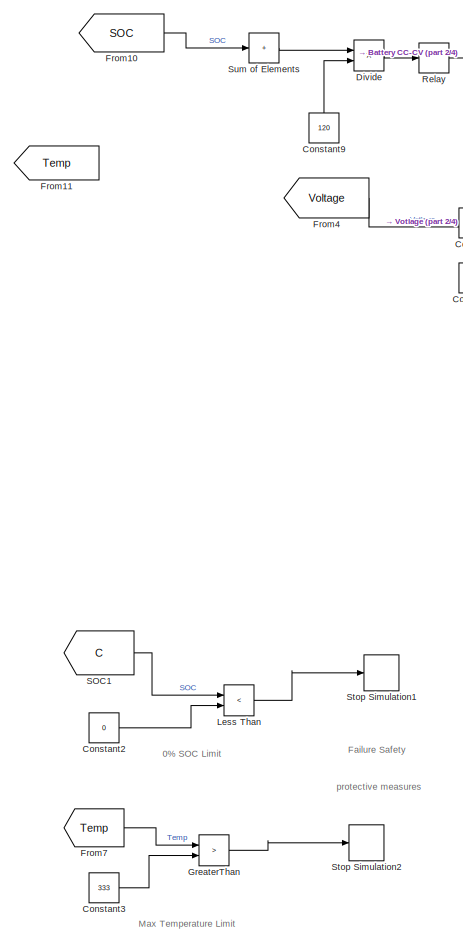
[diagram: root canvas - part 1/4, left side, full height]
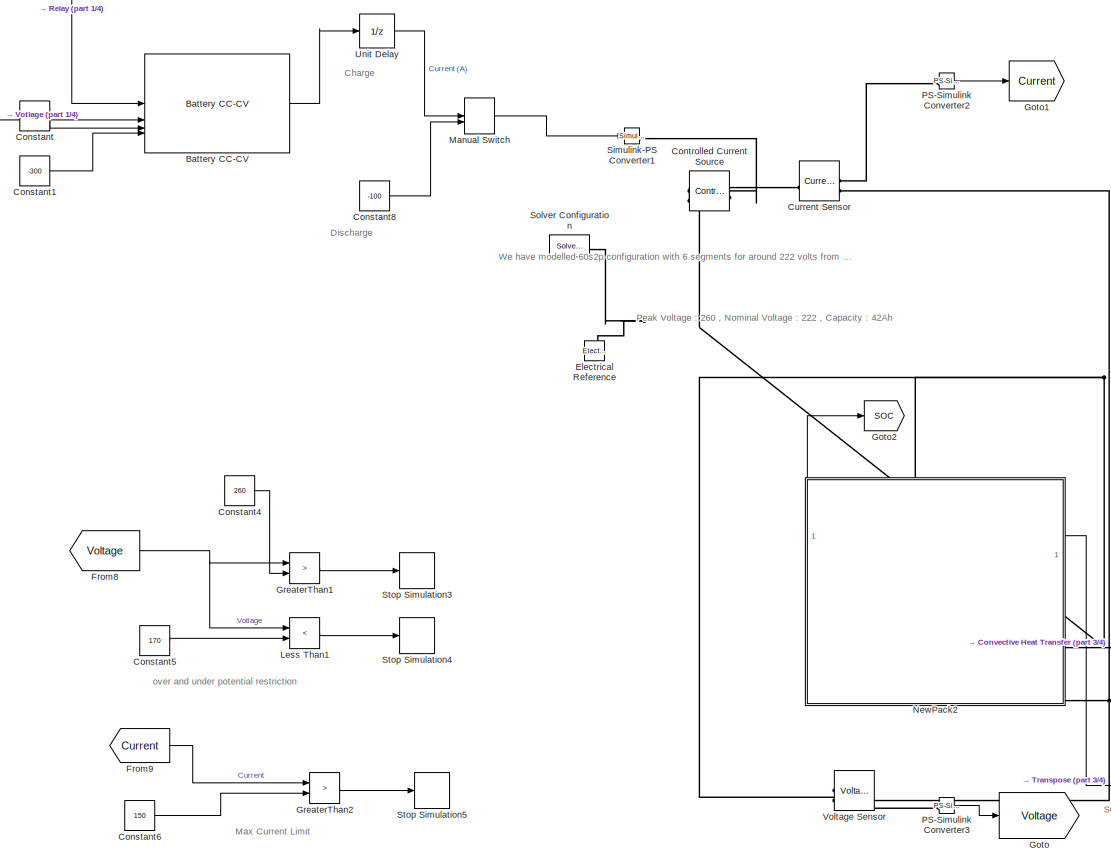
[diagram: root canvas - part 2/4, center side, full height]
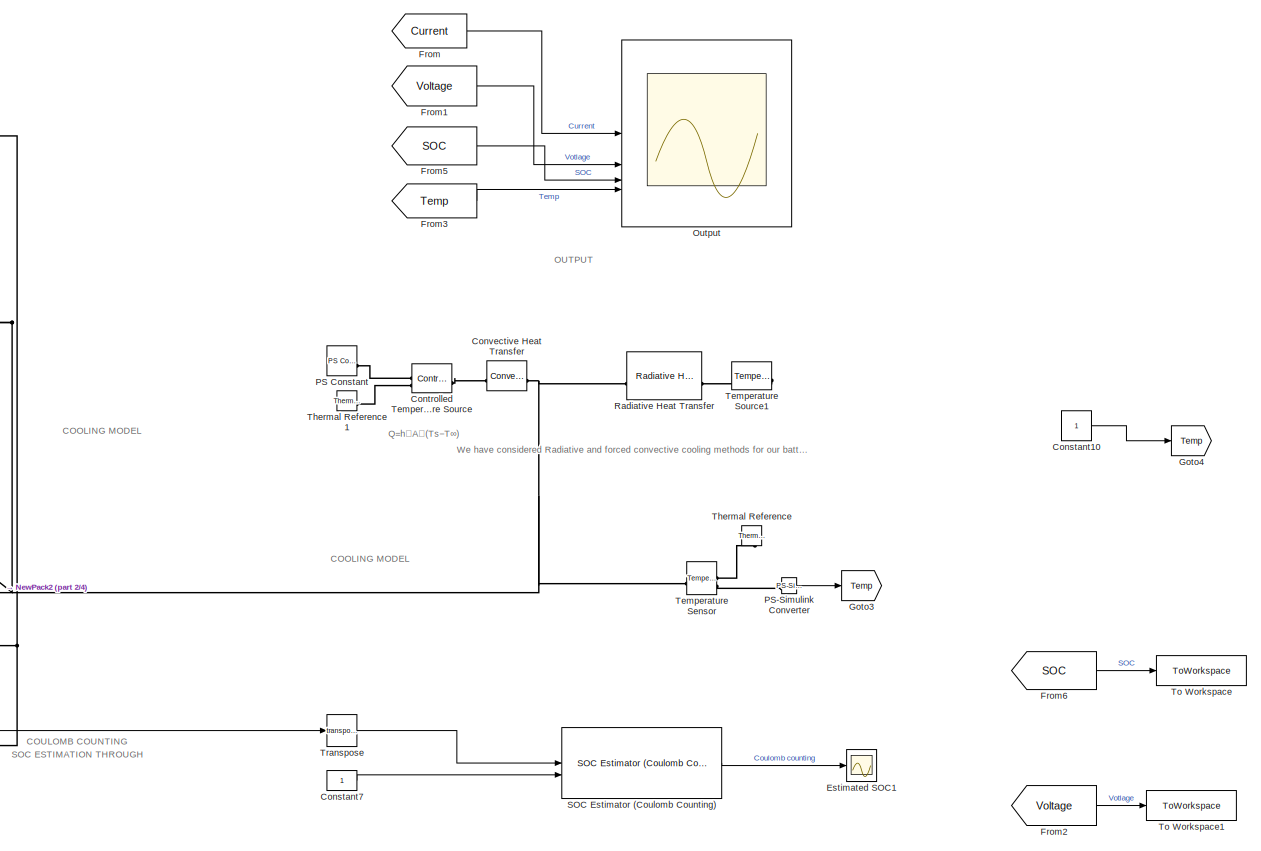
[diagram: root canvas - part 3/4, right side, full height]
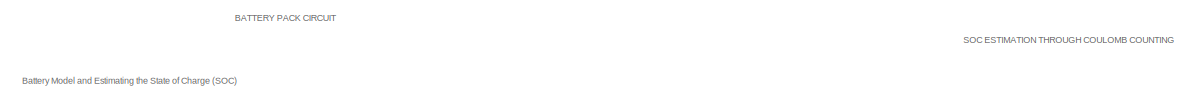
[diagram: root canvas - part 4/4, bottom center region]
MODEL slx_f00c120e42dd
KIND model
CONFIG AbsTol = 1e-3
CONFIG EnableMultiTasking = off
CONFIG FixedStep = auto
CONFIG MaxStep = auto
CONFIG MinStep = auto
CONFIG RelTol = 1e-3
CONFIG SampleTimeConstraint = Unconstrained
CONFIG SolverName = VariableStepAuto
CONFIG StartTime = 0.0
CONFIG StopTime = 5
BLOCK [Reference] Battery CC-CV  REF=BatteryCurrentManagement/Battery CC-CV
  LibrarySourceBlock = batt_sl_lib/Current Management/Battery CC-CV
  SourceBlock = BatteryCurrentManagement/Battery CC-CV
  SourceType = Battery CC-CV
BLOCK [Constant] Constant
  Value = 21
BLOCK [Constant] Constant1
  Value = -300
BLOCK [Constant] Constant10
BLOCK [Constant] Constant2
  Value = 0
BLOCK [Constant] Constant3
  Value = 333
BLOCK [Constant] Constant4
  Value = 260
BLOCK [Constant] Constant5
  Value = 170
BLOCK [Constant] Constant6
  Value = 150
BLOCK [Constant] Constant7
BLOCK [Constant] Constant8
  Value = -100
BLOCK [Constant] Constant9
  NameLocation = right
  Value = 120
BLOCK [Reference] Controlled Current Source  REF=fl_lib/Electrical/Electrical Sources/Controlled Current
Source
  NameLocation = top
  SourceBlock = fl_lib/Electrical/Electrical Sources/Controlled Current\nSource
  SourceType = Controlled Current\nSource
BLOCK [Reference] Controlled Temperature Source  REF=fl_lib/Thermal/Thermal Sources/Controlled
Temperature Source
  NameLocation = top
  SourceBlock = fl_lib/Thermal/Thermal Sources/Controlled\nTemperature Source
  SourceType = Controlled\nTemperature Source
BLOCK [Reference] Convective Heat Transfer  REF=fl_lib/Thermal/Thermal Elements/Convective Heat
Transfer
  SourceBlock = fl_lib/Thermal/Thermal Elements/Convective Heat\nTransfer
  SourceType = Convective Heat\nTransfer
BLOCK [Reference] Current Sensor  REF=fl_lib/Electrical/Electrical Sensors/Current Sensor
  SourceBlock = fl_lib/Electrical/Electrical Sensors/Current Sensor
  SourceType = Current Sensor
BLOCK [Product] Divide
  Inputs = */
BLOCK [Reference] Electrical Reference  REF=fl_lib/Electrical/Electrical Elements/Electrical Reference
  SourceBlock = fl_lib/Electrical/Electrical Elements/Electrical Reference
  SourceType = Electrical Reference
BLOCK [Scope] Estimated SOC1
  Floating = off
  NumInputPorts = 1
  ScopeSpecificationString = Simulink.scopes.TimeScopeBlockCfg('CurrentConfiguration', extmgr.ConfigurationSet(extmgr.Configuration('Core','General UI',true),extmgr.Configuration('Core','Source UI',true),extmgr.Configuration('Sources','WiredSimulink',true,'DataLoggingVariableName','ScopeData1'),extmgr.Configuration('Visuals','Time Domain',true,'SerializedDisplays',{struct('MinYLimReal','-0.11458','MaxYLimReal','1.12384','YLab...<+4203ch>
BLOCK [From] From
  GotoTag = Current
BLOCK [From] From1
  GotoTag = Voltage
BLOCK [From] From10
  GotoTag = SOC
BLOCK [From] From11
  GotoTag = Temp
BLOCK [From] From2
  GotoTag = Voltage
BLOCK [From] From3
  GotoTag = Temp
BLOCK [From] From4
  GotoTag = Voltage
BLOCK [From] From5
  GotoTag = SOC
BLOCK [From] From6
  GotoTag = SOC
BLOCK [From] From7
  GotoTag = Temp
BLOCK [From] From8
  GotoTag = Voltage
BLOCK [From] From9
  GotoTag = Current
BLOCK [Goto] Goto
  GotoTag = Voltage
  IconDisplay = Tag and signal name
BLOCK [Goto] Goto1
  GotoTag = Current
  IconDisplay = Tag and signal name
BLOCK [Goto] Goto2
  GotoTag = SOC
BLOCK [Goto] Goto3
  GotoTag = Temp
BLOCK [Goto] Goto4
  GotoTag = Temp
BLOCK [RelationalOperator] GreaterThan
  InputSameDT = off
  Operator = >
  OutDataTypeStr = boolean
  RndMeth = Simplest
BLOCK [RelationalOperator] GreaterThan1
  InputSameDT = off
  Operator = >
  OutDataTypeStr = boolean
  RndMeth = Simplest
BLOCK [RelationalOperator] GreaterThan2
  InputSameDT = off
  Operator = >
  OutDataTypeStr = boolean
  RndMeth = Simplest
BLOCK [RelationalOperator] Less Than
  InputSameDT = off
  Operator = <
  OutDataTypeStr = boolean
  RndMeth = Simplest
BLOCK [RelationalOperator] Less Than1
  InputSameDT = off
  Operator = <
  OutDataTypeStr = boolean
  RndMeth = Simplest
BLOCK [ManualSwitch] Manual Switch
  CurrentSetting = 0
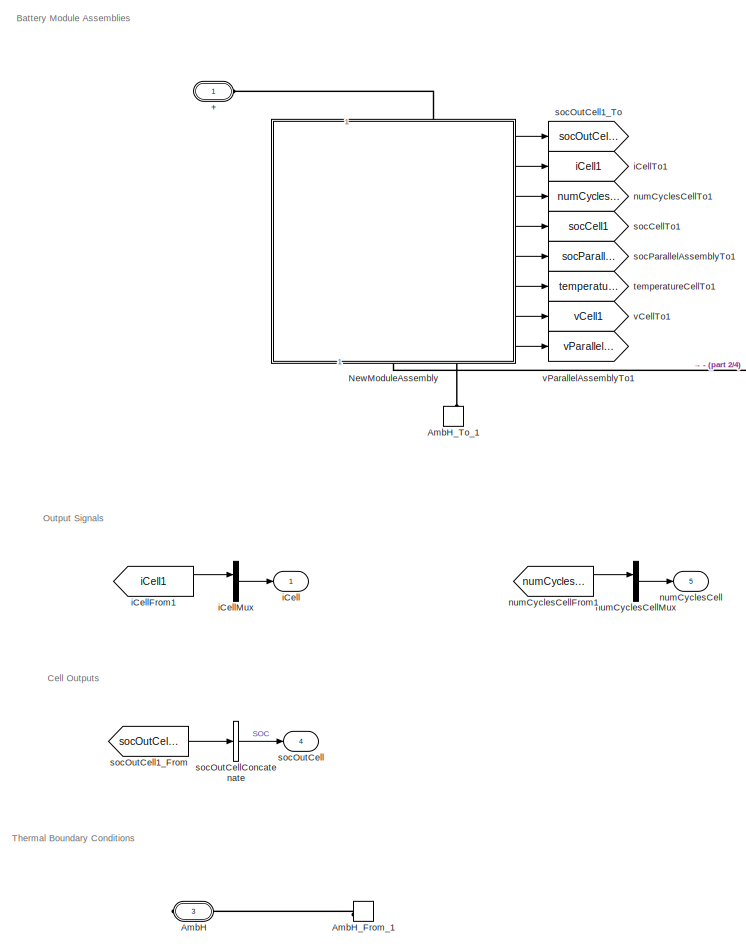
[diagram: NewPack2 - part 1/4, left side, full height]
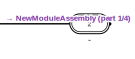
[diagram: NewPack2 - part 2/4, top right region]
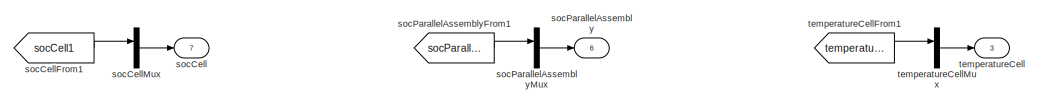
[diagram: NewPack2 - part 3/4, central region]
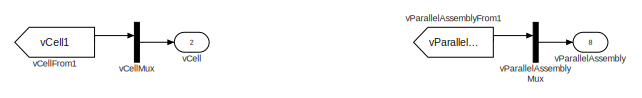
[diagram: NewPack2 - part 4/4, middle right region]
BLOCK [SubSystem] NewPack2
  CopyFcn = battery_builder_rtmsupport('copyfcn',gcbh);
  LoadFcn = battery_builder_rtmsupport('loadfcn',gcbh);
  NameLocation = right
  PortSchema = {"entries":[{"content":{"sides":[{"content":{"connectorIds":["LConn1"]},"type":"ConnectorPlacement.EquallySpacedRectSide","uuid":"dc7d36c4-4c89-4b98-861c-dbd258b1b0ba"},{"content":{"connectorIds":["RConn1","Out1","Out2","RConn2","Out3"],"side":"RIGHT"},"type":"ConnectorPlacement.EquallySpacedRectSide","uuid":"18c0289f-27a4-4c51-8919-c88b087c6b51"},{"content":{"side":"TOP"},"type":"ConnectorPlaceme...<+435ch>
  PreCopyFcn = battery_builder_rtmsupport('precopyfcn',gcbh);
  PreDeleteFcn = battery_builder_rtmsupport('predeletefcn',gcbh);
BLOCK [PMIOPort] NewPack2/+
  Side = Left
BLOCK [PMIOPort] NewPack2/-
  Port = 2
  Side = Right
BLOCK [PMIOPort] NewPack2/AmbH
  ConnectionType = Connection: foundation.thermal.thermal
  Port = 3
  Side = Right
BLOCK [ConnectionLabel] NewPack2/AmbH_From_1
  Label = ambH_1
BLOCK [ConnectionLabel] NewPack2/AmbH_To_1
  Label = ambH_1
  NameLocation = right
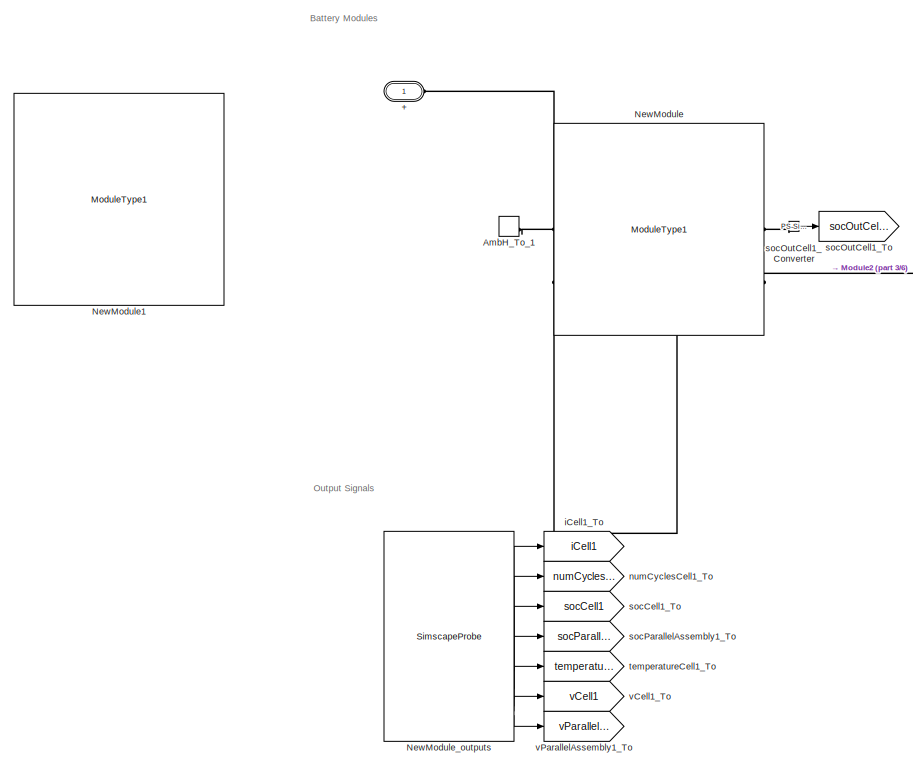
[diagram: NewPack2/NewModuleAssembly - part 1/6, top left region]
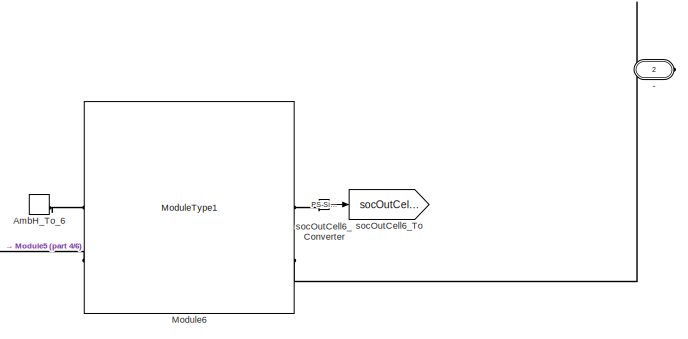
[diagram: NewPack2/NewModuleAssembly - part 2/6, top right region]
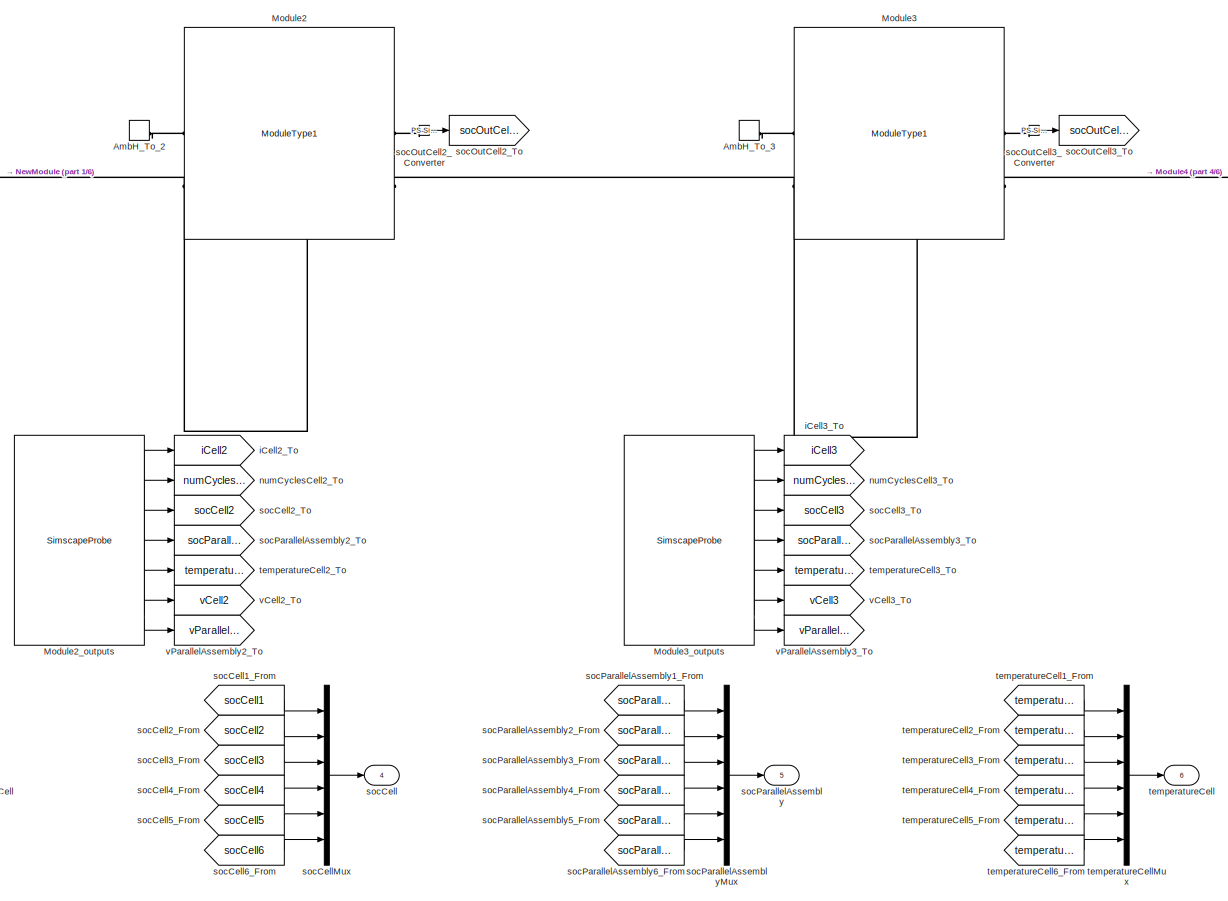
[diagram: NewPack2/NewModuleAssembly - part 3/6, central region]
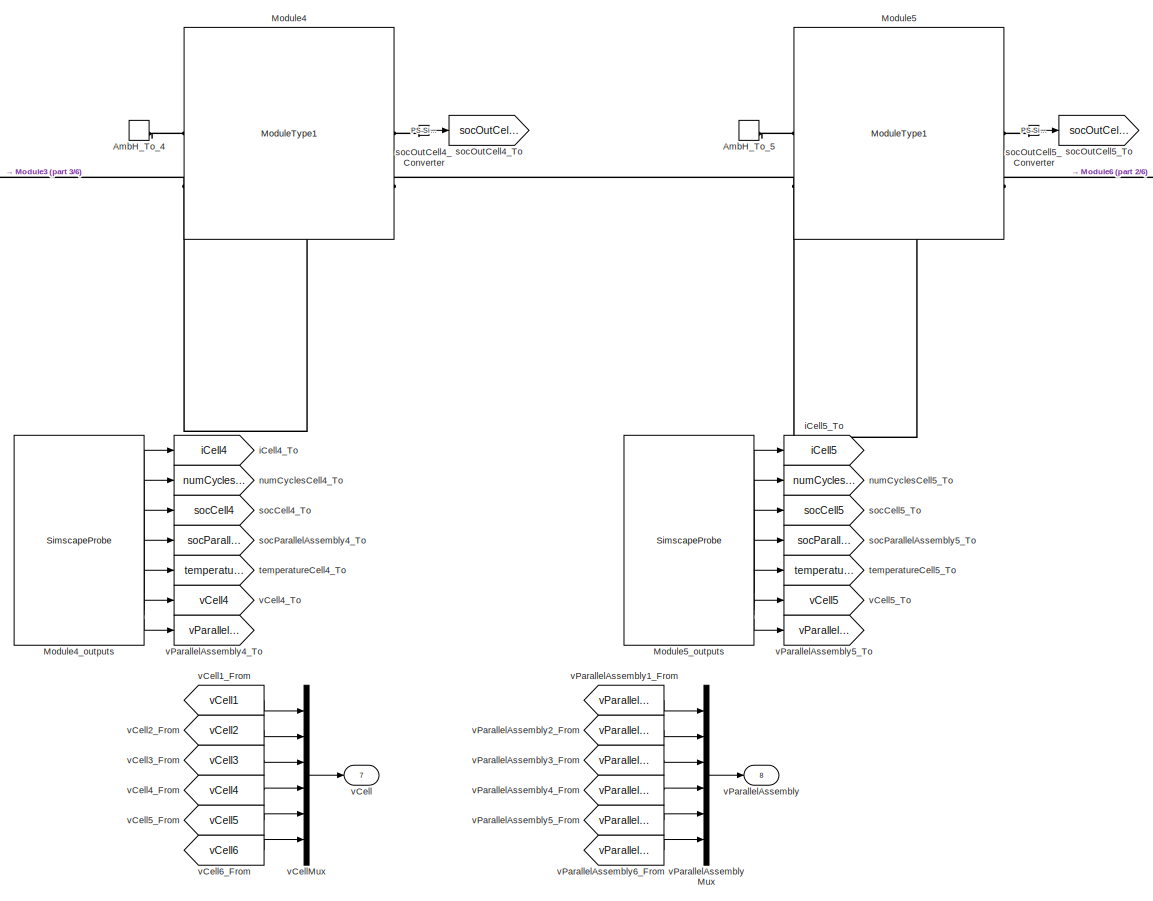
[diagram: NewPack2/NewModuleAssembly - part 4/6, central region]
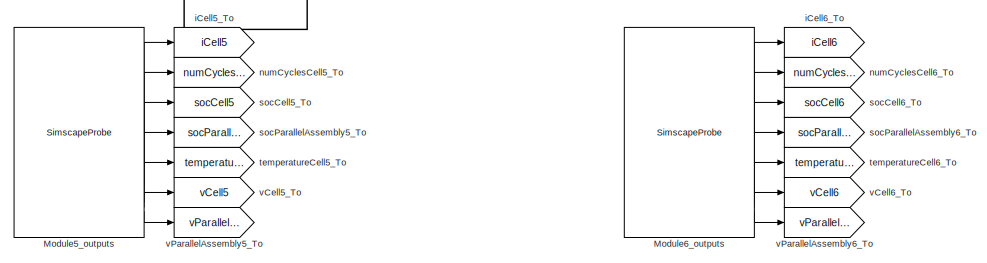
[diagram: NewPack2/NewModuleAssembly - part 5/6, middle right region]
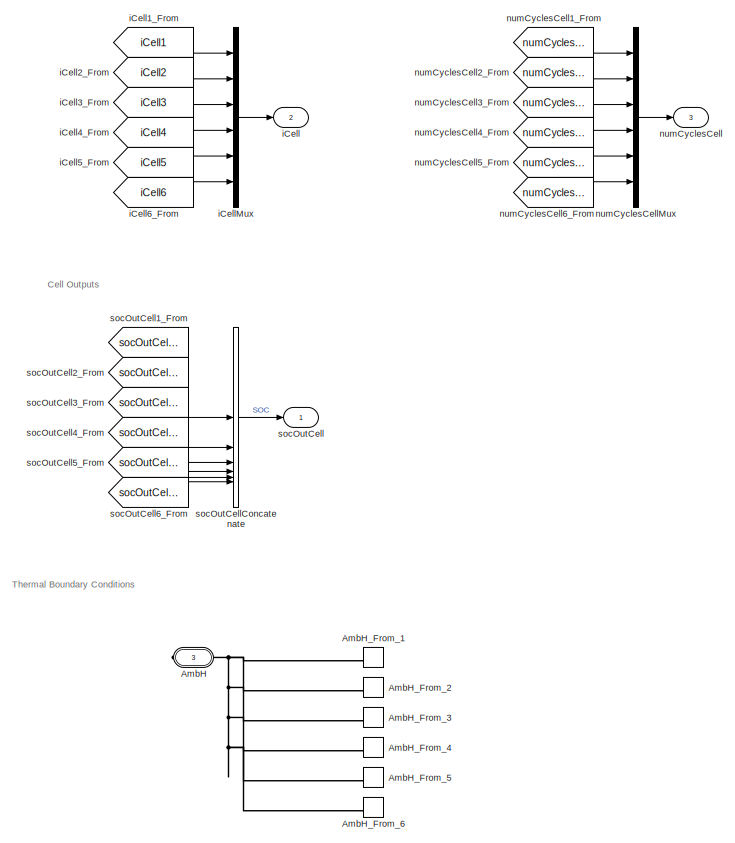
[diagram: NewPack2/NewModuleAssembly - part 6/6, bottom left region]
BLOCK [SubSystem] NewPack2/NewModuleAssembly
  CopyFcn = battery_builder_rtmsupport('copyfcn',gcbh);
  LoadFcn = battery_builder_rtmsupport('loadfcn',gcbh);
  PortSchema = {"entries":[{"content":{"sides":[{"content":{"connectorIds":["LConn1"]},"type":"ConnectorPlacement.EquallySpacedRectSide","uuid":"dc7d36c4-4c89-4b98-861c-dbd258b1b0ba"},{"content":{"connectorIds":["RConn1","RConn2"],"side":"RIGHT"},"type":"ConnectorPlacement.EquallySpacedRectSide","uuid":"18c0289f-27a4-4c51-8919-c88b087c6b51"},{"content":{"side":"TOP"},"type":"ConnectorPlacement.EquallySpacedRectS...<+435ch>
  PreCopyFcn = battery_builder_rtmsupport('precopyfcn',gcbh);
  PreDeleteFcn = battery_builder_rtmsupport('predeletefcn',gcbh);
BLOCK [PMIOPort] NewPack2/NewModuleAssembly/+
  Side = Left
BLOCK [PMIOPort] NewPack2/NewModuleAssembly/-
  Port = 2
  Side = Right
BLOCK [PMIOPort] NewPack2/NewModuleAssembly/AmbH
  ConnectionType = Connection: foundation.thermal.thermal
  Port = 3
  Side = Right
BLOCK [ConnectionLabel] NewPack2/NewModuleAssembly/AmbH_From_1
  Label = ambH_1
BLOCK [ConnectionLabel] NewPack2/NewModuleAssembly/AmbH_From_2
  Label = ambH_2
BLOCK [ConnectionLabel] NewPack2/NewModuleAssembly/AmbH_From_3
  Label = ambH_3
BLOCK [ConnectionLabel] NewPack2/NewModuleAssembly/AmbH_From_4
  Label = ambH_4
BLOCK [ConnectionLabel] NewPack2/NewModuleAssembly/AmbH_From_5
  Label = ambH_5
BLOCK [ConnectionLabel] NewPack2/NewModuleAssembly/AmbH_From_6
  Label = ambH_6
BLOCK [ConnectionLabel] NewPack2/NewModuleAssembly/AmbH_To_1
  Label = ambH_1
BLOCK [ConnectionLabel] NewPack2/NewModuleAssembly/AmbH_To_2
  Label = ambH_2
BLOCK [ConnectionLabel] NewPack2/NewModuleAssembly/AmbH_To_3
  Label = ambH_3
BLOCK [ConnectionLabel] NewPack2/NewModuleAssembly/AmbH_To_4
  Label = ambH_4
BLOCK [ConnectionLabel] NewPack2/NewModuleAssembly/AmbH_To_5
  Label = ambH_5
BLOCK [ConnectionLabel] NewPack2/NewModuleAssembly/AmbH_To_6
  Label = ambH_6
BLOCK [Reference] NewPack2/NewModuleAssembly/Module2  REF=Batteries_10s2p_lib/Modules/ModuleType1
  SourceBlock = Batteries_10s2p_lib/Modules/ModuleType1
  SourceType = ModuleType1
BLOCK [SimscapeProbe] NewPack2/NewModuleAssembly/Module2_outputs
  BoundBlock = 1419
  Variables = {"iCell":{"Unit":"A","PortLabel":"iCell","Probing":"ON"},"numCyclesCell":{"Unit":"1","PortLabel":"numCyclesCell","Probing":"ON"},"socCell":{"Unit":"1","PortLabel":"socCell","Probing":"ON"},"socParallelAssembly":{"Unit":"1","PortLabel":"socParallelAssembly","Probing":"ON"},"temperatureCell":{"Unit":"K","PortLabel":"temperatureCell","Probing":"ON"},"vCell":{"Unit":"V","PortLabel":"vCell","Probing":"...<+85ch>  <repeated x6 — deduplicated; at blocks: Module2_outputs, Module3_outputs, Module4_outputs, Module5_outputs, Module6_outputs, NewModule_outputs>
BLOCK [Reference] NewPack2/NewModuleAssembly/Module3  REF=Batteries_10s2p_lib/Modules/ModuleType1
  SourceBlock = Batteries_10s2p_lib/Modules/ModuleType1
  SourceType = ModuleType1
BLOCK [SimscapeProbe] NewPack2/NewModuleAssembly/Module3_outputs
  BoundBlock = 1421
BLOCK [Reference] NewPack2/NewModuleAssembly/Module4  REF=Batteries_10s2p_lib/Modules/ModuleType1
  SourceBlock = Batteries_10s2p_lib/Modules/ModuleType1
  SourceType = ModuleType1
BLOCK [SimscapeProbe] NewPack2/NewModuleAssembly/Module4_outputs
  BoundBlock = 1423
BLOCK [Reference] NewPack2/NewModuleAssembly/Module5  REF=Batteries_10s2p_lib/Modules/ModuleType1
  SourceBlock = Batteries_10s2p_lib/Modules/ModuleType1
  SourceType = ModuleType1
BLOCK [SimscapeProbe] NewPack2/NewModuleAssembly/Module5_outputs
  BoundBlock = 1425
BLOCK [Reference] NewPack2/NewModuleAssembly/Module6  REF=Batteries_10s2p_lib/Modules/ModuleType1
  SourceBlock = Batteries_10s2p_lib/Modules/ModuleType1
  SourceType = ModuleType1
BLOCK [SimscapeProbe] NewPack2/NewModuleAssembly/Module6_outputs
  BoundBlock = 1427
BLOCK [Reference] NewPack2/NewModuleAssembly/NewModule  REF=Batteries_10s2p_lib/Modules/ModuleType1
  SourceBlock = Batteries_10s2p_lib/Modules/ModuleType1
  SourceType = ModuleType1
BLOCK [Reference] NewPack2/NewModuleAssembly/NewModule1  REF=Batteries_10s2p_lib/Modules/ModuleType1
  Commented = on
  SourceBlock = Batteries_10s2p_lib/Modules/ModuleType1
  SourceType = ModuleType1
BLOCK [SimscapeProbe] NewPack2/NewModuleAssembly/NewModule_outputs
  BoundBlock = 1429
BLOCK [Outport] NewPack2/NewModuleAssembly/iCell
  Port = 2
BLOCK [From] NewPack2/NewModuleAssembly/iCell1_From
  GotoTag = iCell1
BLOCK [Goto] NewPack2/NewModuleAssembly/iCell1_To
  GotoTag = iCell1
BLOCK [From] NewPack2/NewModuleAssembly/iCell2_From
  GotoTag = iCell2
BLOCK [Goto] NewPack2/NewModuleAssembly/iCell2_To
  GotoTag = iCell2
BLOCK [From] NewPack2/NewModuleAssembly/iCell3_From
  GotoTag = iCell3
BLOCK [Goto] NewPack2/NewModuleAssembly/iCell3_To
  GotoTag = iCell3
BLOCK [From] NewPack2/NewModuleAssembly/iCell4_From
  GotoTag = iCell4
BLOCK [Goto] NewPack2/NewModuleAssembly/iCell4_To
  GotoTag = iCell4
BLOCK [From] NewPack2/NewModuleAssembly/iCell5_From
  GotoTag = iCell5
BLOCK [Goto] NewPack2/NewModuleAssembly/iCell5_To
  GotoTag = iCell5
BLOCK [From] NewPack2/NewModuleAssembly/iCell6_From
  GotoTag = iCell6
BLOCK [Goto] NewPack2/NewModuleAssembly/iCell6_To
  GotoTag = iCell6
BLOCK [Mux] NewPack2/NewModuleAssembly/iCellMux
  DisplayOption = bar
  Inputs = 6
BLOCK [Outport] NewPack2/NewModuleAssembly/numCyclesCell
  Port = 3
BLOCK [From] NewPack2/NewModuleAssembly/numCyclesCell1_From
  GotoTag = numCyclesCell1
BLOCK [Goto] NewPack2/NewModuleAssembly/numCyclesCell1_To
  GotoTag = numCyclesCell1
BLOCK [From] NewPack2/NewModuleAssembly/numCyclesCell2_From
  GotoTag = numCyclesCell2
BLOCK [Goto] NewPack2/NewModuleAssembly/numCyclesCell2_To
  GotoTag = numCyclesCell2
BLOCK [From] NewPack2/NewModuleAssembly/numCyclesCell3_From
  GotoTag = numCyclesCell3
BLOCK [Goto] NewPack2/NewModuleAssembly/numCyclesCell3_To
  GotoTag = numCyclesCell3
BLOCK [From] NewPack2/NewModuleAssembly/numCyclesCell4_From
  GotoTag = numCyclesCell4
BLOCK [Goto] NewPack2/NewModuleAssembly/numCyclesCell4_To
  GotoTag = numCyclesCell4
BLOCK [From] NewPack2/NewModuleAssembly/numCyclesCell5_From
  GotoTag = numCyclesCell5
BLOCK [Goto] NewPack2/NewModuleAssembly/numCyclesCell5_To
  GotoTag = numCyclesCell5
BLOCK [From] NewPack2/NewModuleAssembly/numCyclesCell6_From
  GotoTag = numCyclesCell6
BLOCK [Goto] NewPack2/NewModuleAssembly/numCyclesCell6_To
  GotoTag = numCyclesCell6
BLOCK [Mux] NewPack2/NewModuleAssembly/numCyclesCellMux
  DisplayOption = bar
  Inputs = 6
BLOCK [Outport] NewPack2/NewModuleAssembly/socCell
  Port = 4
BLOCK [From] NewPack2/NewModuleAssembly/socCell1_From
  GotoTag = socCell1
BLOCK [Goto] NewPack2/NewModuleAssembly/socCell1_To
  GotoTag = socCell1
BLOCK [From] NewPack2/NewModuleAssembly/socCell2_From
  GotoTag = socCell2
BLOCK [Goto] NewPack2/NewModuleAssembly/socCell2_To
  GotoTag = socCell2
BLOCK [From] NewPack2/NewModuleAssembly/socCell3_From
  GotoTag = socCell3
BLOCK [Goto] NewPack2/NewModuleAssembly/socCell3_To
  GotoTag = socCell3
BLOCK [From] NewPack2/NewModuleAssembly/socCell4_From
  GotoTag = socCell4
BLOCK [Goto] NewPack2/NewModuleAssembly/socCell4_To
  GotoTag = socCell4
BLOCK [From] NewPack2/NewModuleAssembly/socCell5_From
  GotoTag = socCell5
BLOCK [Goto] NewPack2/NewModuleAssembly/socCell5_To
  GotoTag = socCell5
BLOCK [From] NewPack2/NewModuleAssembly/socCell6_From
  GotoTag = socCell6
BLOCK [Goto] NewPack2/NewModuleAssembly/socCell6_To
  GotoTag = socCell6
BLOCK [Mux] NewPack2/NewModuleAssembly/socCellMux
  DisplayOption = bar
  Inputs = 6
BLOCK [Outport] NewPack2/NewModuleAssembly/socOutCell
  IconDisplay = Signal name
BLOCK [Reference] NewPack2/NewModuleAssembly/socOutCell1_Converter  REF=nesl_utility/PS-Simulink
Converter
  SourceBlock = nesl_utility/PS-Simulink\nConverter
  SourceType = PS-Simulink\nConverter
BLOCK [From] NewPack2/NewModuleAssembly/socOutCell1_From
  GotoTag = socOutCell1
BLOCK [Goto] NewPack2/NewModuleAssembly/socOutCell1_To
  GotoTag = socOutCell1
BLOCK [Reference] NewPack2/NewModuleAssembly/socOutCell2_Converter  REF=nesl_utility/PS-Simulink
Converter
  SourceBlock = nesl_utility/PS-Simulink\nConverter
  SourceType = PS-Simulink\nConverter
BLOCK [From] NewPack2/NewModuleAssembly/socOutCell2_From
  GotoTag = socOutCell2
BLOCK [Goto] NewPack2/NewModuleAssembly/socOutCell2_To
  GotoTag = socOutCell2
BLOCK [Reference] NewPack2/NewModuleAssembly/socOutCell3_Converter  REF=nesl_utility/PS-Simulink
Converter
  SourceBlock = nesl_utility/PS-Simulink\nConverter
  SourceType = PS-Simulink\nConverter
BLOCK [From] NewPack2/NewModuleAssembly/socOutCell3_From
  GotoTag = socOutCell3
BLOCK [Goto] NewPack2/NewModuleAssembly/socOutCell3_To
  GotoTag = socOutCell3
BLOCK [Reference] NewPack2/NewModuleAssembly/socOutCell4_Converter  REF=nesl_utility/PS-Simulink
Converter
  SourceBlock = nesl_utility/PS-Simulink\nConverter
  SourceType = PS-Simulink\nConverter
BLOCK [From] NewPack2/NewModuleAssembly/socOutCell4_From
  GotoTag = socOutCell4
BLOCK [Goto] NewPack2/NewModuleAssembly/socOutCell4_To
  GotoTag = socOutCell4
BLOCK [Reference] NewPack2/NewModuleAssembly/socOutCell5_Converter  REF=nesl_utility/PS-Simulink
Converter
  SourceBlock = nesl_utility/PS-Simulink\nConverter
  SourceType = PS-Simulink\nConverter
BLOCK [From] NewPack2/NewModuleAssembly/socOutCell5_From
  GotoTag = socOutCell5
BLOCK [Goto] NewPack2/NewModuleAssembly/socOutCell5_To
  GotoTag = socOutCell5
BLOCK [Reference] NewPack2/NewModuleAssembly/socOutCell6_Converter  REF=nesl_utility/PS-Simulink
Converter
  SourceBlock = nesl_utility/PS-Simulink\nConverter
  SourceType = PS-Simulink\nConverter
BLOCK [From] NewPack2/NewModuleAssembly/socOutCell6_From
  GotoTag = socOutCell6
BLOCK [Goto] NewPack2/NewModuleAssembly/socOutCell6_To
  GotoTag = socOutCell6
BLOCK [Concatenate] NewPack2/NewModuleAssembly/socOutCellConcatenate
  ConcatenateDimension = 2
  Mode = Multidimensional array
  NumInputs = 6
BLOCK [Outport] NewPack2/NewModuleAssembly/socParallelAssembly
  Port = 5
BLOCK [From] NewPack2/NewModuleAssembly/socParallelAssembly1_From
  GotoTag = socParallelAssembly1
BLOCK [Goto] NewPack2/NewModuleAssembly/socParallelAssembly1_To
  GotoTag = socParallelAssembly1
BLOCK [From] NewPack2/NewModuleAssembly/socParallelAssembly2_From
  GotoTag = socParallelAssembly2
BLOCK [Goto] NewPack2/NewModuleAssembly/socParallelAssembly2_To
  GotoTag = socParallelAssembly2
BLOCK [From] NewPack2/NewModuleAssembly/socParallelAssembly3_From
  GotoTag = socParallelAssembly3
BLOCK [Goto] NewPack2/NewModuleAssembly/socParallelAssembly3_To
  GotoTag = socParallelAssembly3
BLOCK [From] NewPack2/NewModuleAssembly/socParallelAssembly4_From
  GotoTag = socParallelAssembly4
BLOCK [Goto] NewPack2/NewModuleAssembly/socParallelAssembly4_To
  GotoTag = socParallelAssembly4
BLOCK [From] NewPack2/NewModuleAssembly/socParallelAssembly5_From
  GotoTag = socParallelAssembly5
BLOCK [Goto] NewPack2/NewModuleAssembly/socParallelAssembly5_To
  GotoTag = socParallelAssembly5
BLOCK [From] NewPack2/NewModuleAssembly/socParallelAssembly6_From
  GotoTag = socParallelAssembly6
BLOCK [Goto] NewPack2/NewModuleAssembly/socParallelAssembly6_To
  GotoTag = socParallelAssembly6
BLOCK [Mux] NewPack2/NewModuleAssembly/socParallelAssemblyMux
  DisplayOption = bar
  Inputs = 6
BLOCK [Outport] NewPack2/NewModuleAssembly/temperatureCell
  Port = 6
BLOCK [From] NewPack2/NewModuleAssembly/temperatureCell1_From
  GotoTag = temperatureCell1
BLOCK [Goto] NewPack2/NewModuleAssembly/temperatureCell1_To
  GotoTag = temperatureCell1
BLOCK [From] NewPack2/NewModuleAssembly/temperatureCell2_From
  GotoTag = temperatureCell2
BLOCK [Goto] NewPack2/NewModuleAssembly/temperatureCell2_To
  GotoTag = temperatureCell2
BLOCK [From] NewPack2/NewModuleAssembly/temperatureCell3_From
  GotoTag = temperatureCell3
BLOCK [Goto] NewPack2/NewModuleAssembly/temperatureCell3_To
  GotoTag = temperatureCell3
BLOCK [From] NewPack2/NewModuleAssembly/temperatureCell4_From
  GotoTag = temperatureCell4
BLOCK [Goto] NewPack2/NewModuleAssembly/temperatureCell4_To
  GotoTag = temperatureCell4
BLOCK [From] NewPack2/NewModuleAssembly/temperatureCell5_From
  GotoTag = temperatureCell5
BLOCK [Goto] NewPack2/NewModuleAssembly/temperatureCell5_To
  GotoTag = temperatureCell5
BLOCK [From] NewPack2/NewModuleAssembly/temperatureCell6_From
  GotoTag = temperatureCell6
BLOCK [Goto] NewPack2/NewModuleAssembly/temperatureCell6_To
  GotoTag = temperatureCell6
BLOCK [Mux] NewPack2/NewModuleAssembly/temperatureCellMux
  DisplayOption = bar
  Inputs = 6
BLOCK [Outport] NewPack2/NewModuleAssembly/vCell
  Port = 7
BLOCK [From] NewPack2/NewModuleAssembly/vCell1_From
  GotoTag = vCell1
BLOCK [Goto] NewPack2/NewModuleAssembly/vCell1_To
  GotoTag = vCell1
BLOCK [From] NewPack2/NewModuleAssembly/vCell2_From
  GotoTag = vCell2
BLOCK [Goto] NewPack2/NewModuleAssembly/vCell2_To
  GotoTag = vCell2
BLOCK [From] NewPack2/NewModuleAssembly/vCell3_From
  GotoTag = vCell3
BLOCK [Goto] NewPack2/NewModuleAssembly/vCell3_To
  GotoTag = vCell3
BLOCK [From] NewPack2/NewModuleAssembly/vCell4_From
  GotoTag = vCell4
BLOCK [Goto] NewPack2/NewModuleAssembly/vCell4_To
  GotoTag = vCell4
BLOCK [From] NewPack2/NewModuleAssembly/vCell5_From
  GotoTag = vCell5
BLOCK [Goto] NewPack2/NewModuleAssembly/vCell5_To
  GotoTag = vCell5
BLOCK [From] NewPack2/NewModuleAssembly/vCell6_From
  GotoTag = vCell6
BLOCK [Goto] NewPack2/NewModuleAssembly/vCell6_To
  GotoTag = vCell6
BLOCK [Mux] NewPack2/NewModuleAssembly/vCellMux
  DisplayOption = bar
  Inputs = 6
BLOCK [Outport] NewPack2/NewModuleAssembly/vParallelAssembly
  Port = 8
BLOCK [From] NewPack2/NewModuleAssembly/vParallelAssembly1_From
  GotoTag = vParallelAssembly1
BLOCK [Goto] NewPack2/NewModuleAssembly/vParallelAssembly1_To
  GotoTag = vParallelAssembly1
BLOCK [From] NewPack2/NewModuleAssembly/vParallelAssembly2_From
  GotoTag = vParallelAssembly2
BLOCK [Goto] NewPack2/NewModuleAssembly/vParallelAssembly2_To
  GotoTag = vParallelAssembly2
BLOCK [From] NewPack2/NewModuleAssembly/vParallelAssembly3_From
  GotoTag = vParallelAssembly3
BLOCK [Goto] NewPack2/NewModuleAssembly/vParallelAssembly3_To
  GotoTag = vParallelAssembly3
BLOCK [From] NewPack2/NewModuleAssembly/vParallelAssembly4_From
  GotoTag = vParallelAssembly4
BLOCK [Goto] NewPack2/NewModuleAssembly/vParallelAssembly4_To
  GotoTag = vParallelAssembly4
BLOCK [From] NewPack2/NewModuleAssembly/vParallelAssembly5_From
  GotoTag = vParallelAssembly5
BLOCK [Goto] NewPack2/NewModuleAssembly/vParallelAssembly5_To
  GotoTag = vParallelAssembly5
BLOCK [From] NewPack2/NewModuleAssembly/vParallelAssembly6_From
  GotoTag = vParallelAssembly6
BLOCK [Goto] NewPack2/NewModuleAssembly/vParallelAssembly6_To
  GotoTag = vParallelAssembly6
BLOCK [Mux] NewPack2/NewModuleAssembly/vParallelAssemblyMux
  DisplayOption = bar
  Inputs = 6
BLOCK [Outport] NewPack2/iCell
BLOCK [From] NewPack2/iCellFrom1
  GotoTag = iCell1
BLOCK [Mux] NewPack2/iCellMux
  DisplayOption = bar
  Inputs = 1
BLOCK [Goto] NewPack2/iCellTo1
  GotoTag = iCell1
BLOCK [Outport] NewPack2/numCyclesCell
  Port = 5
BLOCK [From] NewPack2/numCyclesCellFrom1
  GotoTag = numCyclesCell1
BLOCK [Mux] NewPack2/numCyclesCellMux
  DisplayOption = bar
  Inputs = 1
BLOCK [Goto] NewPack2/numCyclesCellTo1
  GotoTag = numCyclesCell1
BLOCK [Outport] NewPack2/socCell
  Port = 7
BLOCK [From] NewPack2/socCellFrom1
  GotoTag = socCell1
BLOCK [Mux] NewPack2/socCellMux
  DisplayOption = bar
  Inputs = 1
BLOCK [Goto] NewPack2/socCellTo1
  GotoTag = socCell1
BLOCK [Outport] NewPack2/socOutCell
  IconDisplay = Signal name
  Port = 4
BLOCK [From] NewPack2/socOutCell1_From
  GotoTag = socOutCell1
BLOCK [Goto] NewPack2/socOutCell1_To
  GotoTag = socOutCell1
BLOCK [Concatenate] NewPack2/socOutCellConcatenate
  ConcatenateDimension = 2
  Mode = Multidimensional array
  NumInputs = 1
BLOCK [Outport] NewPack2/socParallelAssembly
  Port = 6
BLOCK [From] NewPack2/socParallelAssemblyFrom1
  GotoTag = socParallelAssembly1
BLOCK [Mux] NewPack2/socParallelAssemblyMux
  DisplayOption = bar
  Inputs = 1
BLOCK [Goto] NewPack2/socParallelAssemblyTo1
  GotoTag = socParallelAssembly1
BLOCK [Outport] NewPack2/temperatureCell
  Port = 3
BLOCK [From] NewPack2/temperatureCellFrom1
  GotoTag = temperatureCell1
BLOCK [Mux] NewPack2/temperatureCellMux
  DisplayOption = bar
  Inputs = 1
BLOCK [Goto] NewPack2/temperatureCellTo1
  GotoTag = temperatureCell1
BLOCK [Outport] NewPack2/vCell
  Port = 2
BLOCK [From] NewPack2/vCellFrom1
  GotoTag = vCell1
BLOCK [Mux] NewPack2/vCellMux
  DisplayOption = bar
  Inputs = 1
BLOCK [Goto] NewPack2/vCellTo1
  GotoTag = vCell1
BLOCK [Outport] NewPack2/vParallelAssembly
  Port = 8
BLOCK [From] NewPack2/vParallelAssemblyFrom1
  GotoTag = vParallelAssembly1
BLOCK [Mux] NewPack2/vParallelAssemblyMux
  DisplayOption = bar
  Inputs = 1
BLOCK [Goto] NewPack2/vParallelAssemblyTo1
  GotoTag = vParallelAssembly1
BLOCK [Scope] Output
  Floating = off
  NumInputPorts = 4
  ScopeSpecificationString = Simulink.scopes.TimeScopeBlockCfg('CurrentConfiguration', extmgr.ConfigurationSet(extmgr.Configuration('Core','General UI',true),extmgr.Configuration('Core','Source UI',true),extmgr.Configuration('Sources','WiredSimulink',true,'DataLoggingVariableName','ScopeData1'),extmgr.Configuration('Visuals','Time Domain',true,'SerializedDisplays',{struct('MinYLimReal','-1.00000','MaxYLimReal','1.00000','YLab...<+5066ch>
BLOCK [Reference] PS Constant  REF=fl_lib/Physical Signals/Sources/PS Constant
  SourceBlock = fl_lib/Physical Signals/Sources/PS Constant
  SourceType = PS Constant
BLOCK [Reference] PS-Simulink Converter  REF=nesl_utility/PS-Simulink
Converter
  SourceBlock = nesl_utility/PS-Simulink\nConverter
  SourceType = PS-Simulink\nConverter
BLOCK [Reference] PS-Simulink Converter2  REF=nesl_utility/PS-Simulink
Converter
  SourceBlock = nesl_utility/PS-Simulink\nConverter
  SourceType = PS-Simulink\nConverter
BLOCK [Reference] PS-Simulink Converter3  REF=nesl_utility/PS-Simulink
Converter
  SourceBlock = nesl_utility/PS-Simulink\nConverter
  SourceType = PS-Simulink\nConverter
BLOCK [Reference] Radiative Heat Transfer  REF=fl_lib/Thermal/Thermal Elements/Radiative Heat
Transfer
  SourceBlock = fl_lib/Thermal/Thermal Elements/Radiative Heat\nTransfer
  SourceType = Radiative Heat\nTransfer
BLOCK [Relay] Relay
BLOCK [Reference] SOC Estimator (Coulomb Counting)  REF=BatteryEstimators/SOC Estimator
(Coulomb Counting)
  LibrarySourceBlock = batt_sl_lib/Estimators/SOC Estimator\n(Coulomb Counting)
  SourceBlock = BatteryEstimators/SOC Estimator\n(Coulomb Counting)
  SourceType = SOC Estimator (Coulomb Counting)
BLOCK [From] SOC1
  GotoTag = C
  IconDisplay = Signal name
BLOCK [Reference] Simulink-PS Converter1  REF=nesl_utility/Simulink-PS
Converter
  SourceBlock = nesl_utility/Simulink-PS\nConverter
  SourceType = Simulink-PS\nConverter
BLOCK [Reference] Solver Configuration  REF=nesl_utility/Solver
Configuration
  SourceBlock = nesl_utility/Solver\nConfiguration
  SourceType = Solver\nConfiguration
BLOCK [Stop] Stop Simulation1
BLOCK [Stop] Stop Simulation2
BLOCK [Stop] Stop Simulation3
BLOCK [Stop] Stop Simulation4
BLOCK [Stop] Stop Simulation5
BLOCK [Sum] Sum of Elements
  IconShape = rectangular
  Inputs = +
BLOCK [Reference] Temperature Sensor  REF=fl_lib/Thermal/Thermal Sensors/Temperature Sensor
  SourceBlock = fl_lib/Thermal/Thermal Sensors/Temperature Sensor
  SourceType = Temperature Sensor
BLOCK [Reference] Temperature Source1  REF=fl_lib/Thermal/Thermal Sources/Temperature Source
  NameLocation = top
  SourceBlock = fl_lib/Thermal/Thermal Sources/Temperature Source
  SourceType = Temperature Source
BLOCK [Reference] Thermal Reference  REF=fl_lib/Thermal/Thermal Elements/Thermal Reference
  NameLocation = left
  SourceBlock = fl_lib/Thermal/Thermal Elements/Thermal Reference
  SourceType = Thermal Reference
BLOCK [Reference] Thermal Reference1  REF=fl_lib/Thermal/Thermal Elements/Thermal Reference
  SourceBlock = fl_lib/Thermal/Thermal Elements/Thermal Reference
  SourceType = Thermal Reference
BLOCK [ToWorkspace] To Workspace
  FixptAsFi = on
  MaxDataPoints = inf
  SampleTime = -1
  SaveFormat = Timeseries
  VariableName = soc
BLOCK [ToWorkspace] To Workspace1
  FixptAsFi = on
  MaxDataPoints = inf
  SampleTime = -1
  SaveFormat = Timeseries
  VariableName = voltage
BLOCK [Math] Transpose
  Operator = transpose
BLOCK [UnitDelay] Unit Delay
  HasFrameUpgradeWarning = on
  NameLocation = top
  SampleTime = -1
BLOCK [Reference] Voltage Sensor  REF=fl_lib/Electrical/Electrical Sensors/Voltage Sensor
  NameLocation = top
  SourceBlock = fl_lib/Electrical/Electrical Sensors/Voltage Sensor
  SourceType = Voltage Sensor
ANNOTATION (root): 0% SOC Limit
ANNOTATION (root): SOC ESTIMATION THROUGH COULOMB COUNTING
ANNOTATION (root): Q=h⋅A⋅(Ts​−T∞​)
ANNOTATION (root): COOLING MODEL
ANNOTATION (root): We have considered Radiative and forced convective cooling methods for our battery pack
ANNOTATION (root): protective measures
ANNOTATION (root): We have modelled 60s2p configuration with 6 segments for around 222 volts from pack and considered the cell geometry to be pouch. We had extracted values from our cell manufacturer's datasheet and modelled accordingly.
ANNOTATION (root): OUTPUT
ANNOTATION (root): Failure Safety
ANNOTATION (root): BATTERY PACK CIRCUIT
ANNOTATION (root): Battery Model and Estimating the State of Charge (SOC)
ANNOTATION (root): Charge
ANNOTATION (root): Discharge
ANNOTATION (root): Max Current Limit
ANNOTATION (root): Max Temperature Limit
ANNOTATION (root): Peak Voltage : 260 , Nominal Voltage : 222 , Capacity : 42Ah
ANNOTATION (root): over and under potential restriction
ANNOTATION NewPack2: Battery Module Assemblies
ANNOTATION NewPack2: Cell Outputs
ANNOTATION NewPack2: Output Signals
ANNOTATION NewPack2: Thermal Boundary Conditions
ANNOTATION NewPack2/NewModuleAssembly: Battery Modules
ANNOTATION NewPack2/NewModuleAssembly: Cell Outputs
ANNOTATION NewPack2/NewModuleAssembly: Output Signals
ANNOTATION NewPack2/NewModuleAssembly: Thermal Boundary Conditions
LINE Battery CC-CV:1 -> Unit Delay:1
LINE Constant10:1 -> Goto4:1
LINE Constant1:1 -> Battery CC-CV:4
LINE Constant2:1 -> Less Than:2
LINE Constant3:1 -> GreaterThan:2
LINE Constant4:1 -> GreaterThan1:2
LINE Constant5:1 -> Less Than1:2
LINE Constant6:1 -> GreaterThan2:2
LINE Constant7:1 -> SOC Estimator (Coulomb Counting):2
LINE Constant8:1 -> Manual Switch:2
LINE Constant9:1 -> Divide:2
LINE Constant:1 -> Battery CC-CV:3
LINE Divide:1 -> Relay:1
LINE From10:1 -> Sum of Elements:1
LINE From1:1 -> Output:2
LINE From2:1 -> To Workspace1:1
LINE From3:1 -> Output:4
LINE From4:1 -> Battery CC-CV:2
LINE From5:1 -> Output:3
LINE From6:1 -> To Workspace:1
LINE From7:1 -> GreaterThan:1
NET From8:1 -> GreaterThan1:1, Less Than1:1
LINE From9:1 -> GreaterThan2:1
LINE From:1 -> Output:1
LINE GreaterThan1:1 -> Stop Simulation3:1
LINE GreaterThan2:1 -> Stop Simulation5:1
LINE GreaterThan:1 -> Stop Simulation2:1
LINE Less Than1:1 -> Stop Simulation4:1
LINE Less Than:1 -> Stop Simulation1:1
LINE Manual Switch:1 -> Simulink-PS Converter1:1
LINE NewPack2/NewModuleAssembly/Module2_outputs:1 -> NewPack2/NewModuleAssembly/iCell2_To:1
LINE NewPack2/NewModuleAssembly/Module2_outputs:2 -> NewPack2/NewModuleAssembly/numCyclesCell2_To:1
LINE NewPack2/NewModuleAssembly/Module2_outputs:3 -> NewPack2/NewModuleAssembly/socCell2_To:1
LINE NewPack2/NewModuleAssembly/Module2_outputs:4 -> NewPack2/NewModuleAssembly/socParallelAssembly2_To:1
LINE NewPack2/NewModuleAssembly/Module2_outputs:5 -> NewPack2/NewModuleAssembly/temperatureCell2_To:1
LINE NewPack2/NewModuleAssembly/Module2_outputs:6 -> NewPack2/NewModuleAssembly/vCell2_To:1
LINE NewPack2/NewModuleAssembly/Module2_outputs:7 -> NewPack2/NewModuleAssembly/vParallelAssembly2_To:1
LINE NewPack2/NewModuleAssembly/Module3_outputs:1 -> NewPack2/NewModuleAssembly/iCell3_To:1
LINE NewPack2/NewModuleAssembly/Module3_outputs:2 -> NewPack2/NewModuleAssembly/numCyclesCell3_To:1
LINE NewPack2/NewModuleAssembly/Module3_outputs:3 -> NewPack2/NewModuleAssembly/socCell3_To:1
LINE NewPack2/NewModuleAssembly/Module3_outputs:4 -> NewPack2/NewModuleAssembly/socParallelAssembly3_To:1
LINE NewPack2/NewModuleAssembly/Module3_outputs:5 -> NewPack2/NewModuleAssembly/temperatureCell3_To:1
LINE NewPack2/NewModuleAssembly/Module3_outputs:6 -> NewPack2/NewModuleAssembly/vCell3_To:1
LINE NewPack2/NewModuleAssembly/Module3_outputs:7 -> NewPack2/NewModuleAssembly/vParallelAssembly3_To:1
LINE NewPack2/NewModuleAssembly/Module4_outputs:1 -> NewPack2/NewModuleAssembly/iCell4_To:1
LINE NewPack2/NewModuleAssembly/Module4_outputs:2 -> NewPack2/NewModuleAssembly/numCyclesCell4_To:1
LINE NewPack2/NewModuleAssembly/Module4_outputs:3 -> NewPack2/NewModuleAssembly/socCell4_To:1
LINE NewPack2/NewModuleAssembly/Module4_outputs:4 -> NewPack2/NewModuleAssembly/socParallelAssembly4_To:1
LINE NewPack2/NewModuleAssembly/Module4_outputs:5 -> NewPack2/NewModuleAssembly/temperatureCell4_To:1
LINE NewPack2/NewModuleAssembly/Module4_outputs:6 -> NewPack2/NewModuleAssembly/vCell4_To:1
LINE NewPack2/NewModuleAssembly/Module4_outputs:7 -> NewPack2/NewModuleAssembly/vParallelAssembly4_To:1
LINE NewPack2/NewModuleAssembly/Module5_outputs:1 -> NewPack2/NewModuleAssembly/iCell5_To:1
LINE NewPack2/NewModuleAssembly/Module5_outputs:2 -> NewPack2/NewModuleAssembly/numCyclesCell5_To:1
LINE NewPack2/NewModuleAssembly/Module5_outputs:3 -> NewPack2/NewModuleAssembly/socCell5_To:1
LINE NewPack2/NewModuleAssembly/Module5_outputs:4 -> NewPack2/NewModuleAssembly/socParallelAssembly5_To:1
LINE NewPack2/NewModuleAssembly/Module5_outputs:5 -> NewPack2/NewModuleAssembly/temperatureCell5_To:1
LINE NewPack2/NewModuleAssembly/Module5_outputs:6 -> NewPack2/NewModuleAssembly/vCell5_To:1
LINE NewPack2/NewModuleAssembly/Module5_outputs:7 -> NewPack2/NewModuleAssembly/vParallelAssembly5_To:1
LINE NewPack2/NewModuleAssembly/Module6_outputs:1 -> NewPack2/NewModuleAssembly/iCell6_To:1
LINE NewPack2/NewModuleAssembly/Module6_outputs:2 -> NewPack2/NewModuleAssembly/numCyclesCell6_To:1
LINE NewPack2/NewModuleAssembly/Module6_outputs:3 -> NewPack2/NewModuleAssembly/socCell6_To:1
LINE NewPack2/NewModuleAssembly/Module6_outputs:4 -> NewPack2/NewModuleAssembly/socParallelAssembly6_To:1
LINE NewPack2/NewModuleAssembly/Module6_outputs:5 -> NewPack2/NewModuleAssembly/temperatureCell6_To:1
LINE NewPack2/NewModuleAssembly/Module6_outputs:6 -> NewPack2/NewModuleAssembly/vCell6_To:1
LINE NewPack2/NewModuleAssembly/Module6_outputs:7 -> NewPack2/NewModuleAssembly/vParallelAssembly6_To:1
LINE NewPack2/NewModuleAssembly/NewModule_outputs:1 -> NewPack2/NewModuleAssembly/iCell1_To:1
LINE NewPack2/NewModuleAssembly/NewModule_outputs:2 -> NewPack2/NewModuleAssembly/numCyclesCell1_To:1
LINE NewPack2/NewModuleAssembly/NewModule_outputs:3 -> NewPack2/NewModuleAssembly/socCell1_To:1
LINE NewPack2/NewModuleAssembly/NewModule_outputs:4 -> NewPack2/NewModuleAssembly/socParallelAssembly1_To:1
LINE NewPack2/NewModuleAssembly/NewModule_outputs:5 -> NewPack2/NewModuleAssembly/temperatureCell1_To:1
LINE NewPack2/NewModuleAssembly/NewModule_outputs:6 -> NewPack2/NewModuleAssembly/vCell1_To:1
LINE NewPack2/NewModuleAssembly/NewModule_outputs:7 -> NewPack2/NewModuleAssembly/vParallelAssembly1_To:1
LINE NewPack2/NewModuleAssembly/iCell1_From:1 -> NewPack2/NewModuleAssembly/iCellMux:1
LINE NewPack2/NewModuleAssembly/iCell2_From:1 -> NewPack2/NewModuleAssembly/iCellMux:2
LINE NewPack2/NewModuleAssembly/iCell3_From:1 -> NewPack2/NewModuleAssembly/iCellMux:3
LINE NewPack2/NewModuleAssembly/iCell4_From:1 -> NewPack2/NewModuleAssembly/iCellMux:4
LINE NewPack2/NewModuleAssembly/iCell5_From:1 -> NewPack2/NewModuleAssembly/iCellMux:5
LINE NewPack2/NewModuleAssembly/iCell6_From:1 -> NewPack2/NewModuleAssembly/iCellMux:6
LINE NewPack2/NewModuleAssembly/iCellMux:1 -> NewPack2/NewModuleAssembly/iCell:1
LINE NewPack2/NewModuleAssembly/numCyclesCell1_From:1 -> NewPack2/NewModuleAssembly/numCyclesCellMux:1
LINE NewPack2/NewModuleAssembly/numCyclesCell2_From:1 -> NewPack2/NewModuleAssembly/numCyclesCellMux:2
LINE NewPack2/NewModuleAssembly/numCyclesCell3_From:1 -> NewPack2/NewModuleAssembly/numCyclesCellMux:3
LINE NewPack2/NewModuleAssembly/numCyclesCell4_From:1 -> NewPack2/NewModuleAssembly/numCyclesCellMux:4
LINE NewPack2/NewModuleAssembly/numCyclesCell5_From:1 -> NewPack2/NewModuleAssembly/numCyclesCellMux:5
LINE NewPack2/NewModuleAssembly/numCyclesCell6_From:1 -> NewPack2/NewModuleAssembly/numCyclesCellMux:6
LINE NewPack2/NewModuleAssembly/numCyclesCellMux:1 -> NewPack2/NewModuleAssembly/numCyclesCell:1
LINE NewPack2/NewModuleAssembly/socCell1_From:1 -> NewPack2/NewModuleAssembly/socCellMux:1
LINE NewPack2/NewModuleAssembly/socCell2_From:1 -> NewPack2/NewModuleAssembly/socCellMux:2
LINE NewPack2/NewModuleAssembly/socCell3_From:1 -> NewPack2/NewModuleAssembly/socCellMux:3
LINE NewPack2/NewModuleAssembly/socCell4_From:1 -> NewPack2/NewModuleAssembly/socCellMux:4
LINE NewPack2/NewModuleAssembly/socCell5_From:1 -> NewPack2/NewModuleAssembly/socCellMux:5
LINE NewPack2/NewModuleAssembly/socCell6_From:1 -> NewPack2/NewModuleAssembly/socCellMux:6
LINE NewPack2/NewModuleAssembly/socCellMux:1 -> NewPack2/NewModuleAssembly/socCell:1
LINE NewPack2/NewModuleAssembly/socOutCell1_Converter:1 -> NewPack2/NewModuleAssembly/socOutCell1_To:1
LINE NewPack2/NewModuleAssembly/socOutCell1_From:1 -> NewPack2/NewModuleAssembly/socOutCellConcatenate:1
LINE NewPack2/NewModuleAssembly/socOutCell2_Converter:1 -> NewPack2/NewModuleAssembly/socOutCell2_To:1
LINE NewPack2/NewModuleAssembly/socOutCell2_From:1 -> NewPack2/NewModuleAssembly/socOutCellConcatenate:2
LINE NewPack2/NewModuleAssembly/socOutCell3_Converter:1 -> NewPack2/NewModuleAssembly/socOutCell3_To:1
LINE NewPack2/NewModuleAssembly/socOutCell3_From:1 -> NewPack2/NewModuleAssembly/socOutCellConcatenate:3
LINE NewPack2/NewModuleAssembly/socOutCell4_Converter:1 -> NewPack2/NewModuleAssembly/socOutCell4_To:1
LINE NewPack2/NewModuleAssembly/socOutCell4_From:1 -> NewPack2/NewModuleAssembly/socOutCellConcatenate:4
LINE NewPack2/NewModuleAssembly/socOutCell5_Converter:1 -> NewPack2/NewModuleAssembly/socOutCell5_To:1
LINE NewPack2/NewModuleAssembly/socOutCell5_From:1 -> NewPack2/NewModuleAssembly/socOutCellConcatenate:5
LINE NewPack2/NewModuleAssembly/socOutCell6_Converter:1 -> NewPack2/NewModuleAssembly/socOutCell6_To:1
LINE NewPack2/NewModuleAssembly/socOutCell6_From:1 -> NewPack2/NewModuleAssembly/socOutCellConcatenate:6
LINE NewPack2/NewModuleAssembly/socOutCellConcatenate:1 -> NewPack2/NewModuleAssembly/socOutCell:1
LINE NewPack2/NewModuleAssembly/socParallelAssembly1_From:1 -> NewPack2/NewModuleAssembly/socParallelAssemblyMux:1
LINE NewPack2/NewModuleAssembly/socParallelAssembly2_From:1 -> NewPack2/NewModuleAssembly/socParallelAssemblyMux:2
LINE NewPack2/NewModuleAssembly/socParallelAssembly3_From:1 -> NewPack2/NewModuleAssembly/socParallelAssemblyMux:3
LINE NewPack2/NewModuleAssembly/socParallelAssembly4_From:1 -> NewPack2/NewModuleAssembly/socParallelAssemblyMux:4
LINE NewPack2/NewModuleAssembly/socParallelAssembly5_From:1 -> NewPack2/NewModuleAssembly/socParallelAssemblyMux:5
LINE NewPack2/NewModuleAssembly/socParallelAssembly6_From:1 -> NewPack2/NewModuleAssembly/socParallelAssemblyMux:6
LINE NewPack2/NewModuleAssembly/socParallelAssemblyMux:1 -> NewPack2/NewModuleAssembly/socParallelAssembly:1
LINE NewPack2/NewModuleAssembly/temperatureCell1_From:1 -> NewPack2/NewModuleAssembly/temperatureCellMux:1
LINE NewPack2/NewModuleAssembly/temperatureCell2_From:1 -> NewPack2/NewModuleAssembly/temperatureCellMux:2
LINE NewPack2/NewModuleAssembly/temperatureCell3_From:1 -> NewPack2/NewModuleAssembly/temperatureCellMux:3
LINE NewPack2/NewModuleAssembly/temperatureCell4_From:1 -> NewPack2/NewModuleAssembly/temperatureCellMux:4
LINE NewPack2/NewModuleAssembly/temperatureCell5_From:1 -> NewPack2/NewModuleAssembly/temperatureCellMux:5
LINE NewPack2/NewModuleAssembly/temperatureCell6_From:1 -> NewPack2/NewModuleAssembly/temperatureCellMux:6
LINE NewPack2/NewModuleAssembly/temperatureCellMux:1 -> NewPack2/NewModuleAssembly/temperatureCell:1
LINE NewPack2/NewModuleAssembly/vCell1_From:1 -> NewPack2/NewModuleAssembly/vCellMux:1
LINE NewPack2/NewModuleAssembly/vCell2_From:1 -> NewPack2/NewModuleAssembly/vCellMux:2
LINE NewPack2/NewModuleAssembly/vCell3_From:1 -> NewPack2/NewModuleAssembly/vCellMux:3
LINE NewPack2/NewModuleAssembly/vCell4_From:1 -> NewPack2/NewModuleAssembly/vCellMux:4
LINE NewPack2/NewModuleAssembly/vCell5_From:1 -> NewPack2/NewModuleAssembly/vCellMux:5
LINE NewPack2/NewModuleAssembly/vCell6_From:1 -> NewPack2/NewModuleAssembly/vCellMux:6
LINE NewPack2/NewModuleAssembly/vCellMux:1 -> NewPack2/NewModuleAssembly/vCell:1
LINE NewPack2/NewModuleAssembly/vParallelAssembly1_From:1 -> NewPack2/NewModuleAssembly/vParallelAssemblyMux:1
LINE NewPack2/NewModuleAssembly/vParallelAssembly2_From:1 -> NewPack2/NewModuleAssembly/vParallelAssemblyMux:2
LINE NewPack2/NewModuleAssembly/vParallelAssembly3_From:1 -> NewPack2/NewModuleAssembly/vParallelAssemblyMux:3
LINE NewPack2/NewModuleAssembly/vParallelAssembly4_From:1 -> NewPack2/NewModuleAssembly/vParallelAssemblyMux:4
LINE NewPack2/NewModuleAssembly/vParallelAssembly5_From:1 -> NewPack2/NewModuleAssembly/vParallelAssemblyMux:5
LINE NewPack2/NewModuleAssembly/vParallelAssembly6_From:1 -> NewPack2/NewModuleAssembly/vParallelAssemblyMux:6
LINE NewPack2/NewModuleAssembly/vParallelAssemblyMux:1 -> NewPack2/NewModuleAssembly/vParallelAssembly:1
LINE NewPack2/NewModuleAssembly:1 -> NewPack2/socOutCell1_To:1
LINE NewPack2/NewModuleAssembly:2 -> NewPack2/iCellTo1:1
LINE NewPack2/NewModuleAssembly:3 -> NewPack2/numCyclesCellTo1:1
LINE NewPack2/NewModuleAssembly:4 -> NewPack2/socCellTo1:1
LINE NewPack2/NewModuleAssembly:5 -> NewPack2/socParallelAssemblyTo1:1
LINE NewPack2/NewModuleAssembly:6 -> NewPack2/temperatureCellTo1:1
LINE NewPack2/NewModuleAssembly:7 -> NewPack2/vCellTo1:1
LINE NewPack2/NewModuleAssembly:8 -> NewPack2/vParallelAssemblyTo1:1
LINE NewPack2/iCellFrom1:1 -> NewPack2/iCellMux:1
LINE NewPack2/iCellMux:1 -> NewPack2/iCell:1
LINE NewPack2/numCyclesCellFrom1:1 -> NewPack2/numCyclesCellMux:1
LINE NewPack2/numCyclesCellMux:1 -> NewPack2/numCyclesCell:1
LINE NewPack2/socCellFrom1:1 -> NewPack2/socCellMux:1
LINE NewPack2/socCellMux:1 -> NewPack2/socCell:1
LINE NewPack2/socOutCell1_From:1 -> NewPack2/socOutCellConcatenate:1
LINE NewPack2/socOutCellConcatenate:1 -> NewPack2/socOutCell:1
LINE NewPack2/socParallelAssemblyFrom1:1 -> NewPack2/socParallelAssemblyMux:1
LINE NewPack2/socParallelAssemblyMux:1 -> NewPack2/socParallelAssembly:1
LINE NewPack2/temperatureCellFrom1:1 -> NewPack2/temperatureCellMux:1
LINE NewPack2/temperatureCellMux:1 -> NewPack2/temperatureCell:1
LINE NewPack2/vCellFrom1:1 -> NewPack2/vCellMux:1
LINE NewPack2/vCellMux:1 -> NewPack2/vCell:1
LINE NewPack2/vParallelAssemblyFrom1:1 -> NewPack2/vParallelAssemblyMux:1
LINE NewPack2/vParallelAssemblyMux:1 -> NewPack2/vParallelAssembly:1
LINE NewPack2:1 -> Transpose:1
LINE NewPack2:4 -> Goto2:1
LINE PS-Simulink Converter2:1 -> Goto1:1
LINE PS-Simulink Converter3:1 -> Goto:1
LINE PS-Simulink Converter:1 -> Goto3:1
LINE Relay:1 -> Battery CC-CV:1
LINE SOC Estimator (Coulomb Counting):1 -> Estimated SOC1:1
LINE SOC1:1 -> Less Than:1
LINE Sum of Elements:1 -> Divide:1
LINE Transpose:1 -> SOC Estimator (Coulomb Counting):1
LINE Unit Delay:1 -> Manual Switch:1
PNET net1: Controlled Current Source:LConn1 -- Electrical Reference:LConn1 -- NewPack2:LConn1 -- Solver Configuration:RConn1 -- Voltage Sensor:LConn1
PLINE Controlled Current Source:RConn1 -- Simulink-PS Converter1:RConn1
PLINE Controlled Current Source:RConn2 -- Current Sensor:LConn1
PLINE Controlled Temperature Source:LConn1 -- Convective Heat Transfer:LConn1
PLINE Controlled Temperature Source:RConn1 -- PS Constant:RConn1
PLINE Controlled Temperature Source:RConn2 -- Thermal Reference1:LConn1
PNET net2: Convective Heat Transfer:RConn1 -- NewPack2:RConn2 -- Radiative Heat Transfer:LConn1 -- Temperature Sensor:LConn1
PLINE Current Sensor:RConn1 -- PS-Simulink Converter2:LConn1
PNET net3: Current Sensor:RConn2 -- NewPack2:RConn1 -- Voltage Sensor:RConn2
PLINE NewPack2/+:RConn1 -- NewPack2/NewModuleAssembly:LConn1
PLINE NewPack2/-:RConn1 -- NewPack2/NewModuleAssembly:RConn1
PLINE NewPack2/AmbH:RConn1 -- NewPack2/AmbH_From_1:LConn1
PLINE NewPack2/AmbH_To_1:LConn1 -- NewPack2/NewModuleAssembly:RConn2
PLINE NewPack2/NewModuleAssembly/+:RConn1 -- NewPack2/NewModuleAssembly/NewModule:LConn2
PLINE NewPack2/NewModuleAssembly/-:RConn1 -- NewPack2/NewModuleAssembly/Module6:RConn2
PNET net4: NewPack2/NewModuleAssembly/AmbH:RConn1 -- NewPack2/NewModuleAssembly/AmbH_From_1:LConn1 -- NewPack2/NewModuleAssembly/AmbH_From_2:LConn1 -- NewPack2/NewModuleAssembly/AmbH_From_3:LConn1 -- NewPack2/NewModuleAssembly/AmbH_From_4:LConn1 -- NewPack2/NewModuleAssembly/AmbH_From_5:LConn1 -- NewPack2/NewModuleAssembly/AmbH_From_6:LConn1
PLINE NewPack2/NewModuleAssembly/AmbH_To_1:LConn1 -- NewPack2/NewModuleAssembly/NewModule:LConn1
PLINE NewPack2/NewModuleAssembly/AmbH_To_2:LConn1 -- NewPack2/NewModuleAssembly/Module2:LConn1
PLINE NewPack2/NewModuleAssembly/AmbH_To_3:LConn1 -- NewPack2/NewModuleAssembly/Module3:LConn1
PLINE NewPack2/NewModuleAssembly/AmbH_To_4:LConn1 -- NewPack2/NewModuleAssembly/Module4:LConn1
PLINE NewPack2/NewModuleAssembly/AmbH_To_5:LConn1 -- NewPack2/NewModuleAssembly/Module5:LConn1
PLINE NewPack2/NewModuleAssembly/AmbH_To_6:LConn1 -- NewPack2/NewModuleAssembly/Module6:LConn1
PLINE NewPack2/NewModuleAssembly/Module2:LConn2 -- NewPack2/NewModuleAssembly/NewModule:RConn2
PLINE NewPack2/NewModuleAssembly/Module2:RConn1 -- NewPack2/NewModuleAssembly/socOutCell2_Converter:LConn1
PLINE NewPack2/NewModuleAssembly/Module2:RConn2 -- NewPack2/NewModuleAssembly/Module3:LConn2
PLINE NewPack2/NewModuleAssembly/Module3:RConn1 -- NewPack2/NewModuleAssembly/socOutCell3_Converter:LConn1
PLINE NewPack2/NewModuleAssembly/Module3:RConn2 -- NewPack2/NewModuleAssembly/Module4:LConn2
PLINE NewPack2/NewModuleAssembly/Module4:RConn1 -- NewPack2/NewModuleAssembly/socOutCell4_Converter:LConn1
PLINE NewPack2/NewModuleAssembly/Module4:RConn2 -- NewPack2/NewModuleAssembly/Module5:LConn2
PLINE NewPack2/NewModuleAssembly/Module5:RConn1 -- NewPack2/NewModuleAssembly/socOutCell5_Converter:LConn1
PLINE NewPack2/NewModuleAssembly/Module5:RConn2 -- NewPack2/NewModuleAssembly/Module6:LConn2
PLINE NewPack2/NewModuleAssembly/Module6:RConn1 -- NewPack2/NewModuleAssembly/socOutCell6_Converter:LConn1
PLINE NewPack2/NewModuleAssembly/NewModule:RConn1 -- NewPack2/NewModuleAssembly/socOutCell1_Converter:LConn1
PLINE PS-Simulink Converter3:LConn1 -- Voltage Sensor:RConn1
PLINE PS-Simulink Converter:LConn1 -- Temperature Sensor:RConn2
PLINE Radiative Heat Transfer:RConn1 -- Temperature Source1:LConn1
PLINE Temperature Sensor:RConn1 -- Thermal Reference:LConn1
note: NET lines group one-source signal fan-out (src -> all destinations, sorted); 1:1 wires keep LINE; PNET lines group multi-terminal physical nets as a canonical sorted terminal list (undirected conserving connections); 2-terminal nets keep the pairwise PLINE form
